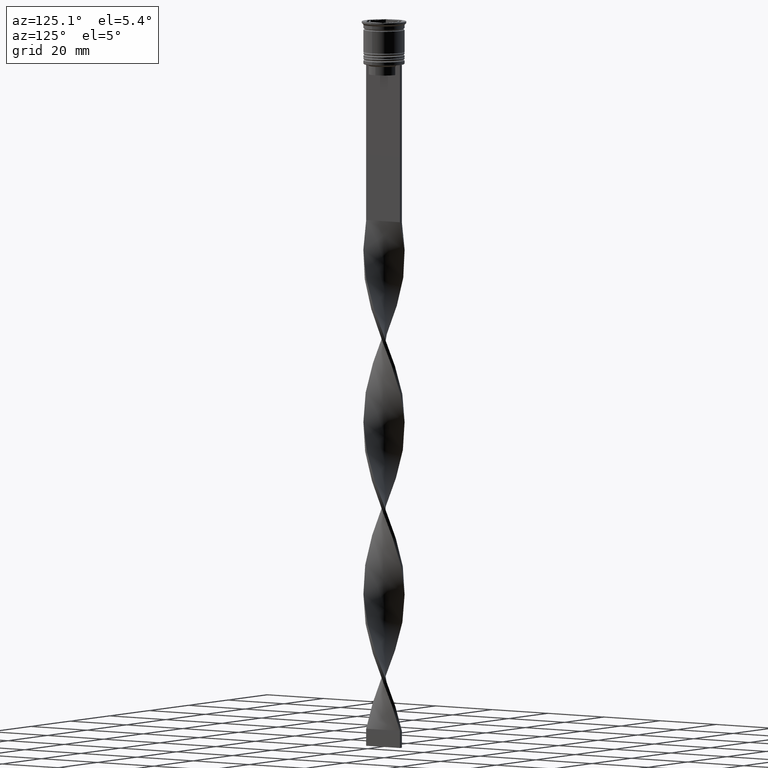
[diagram: clean part render]
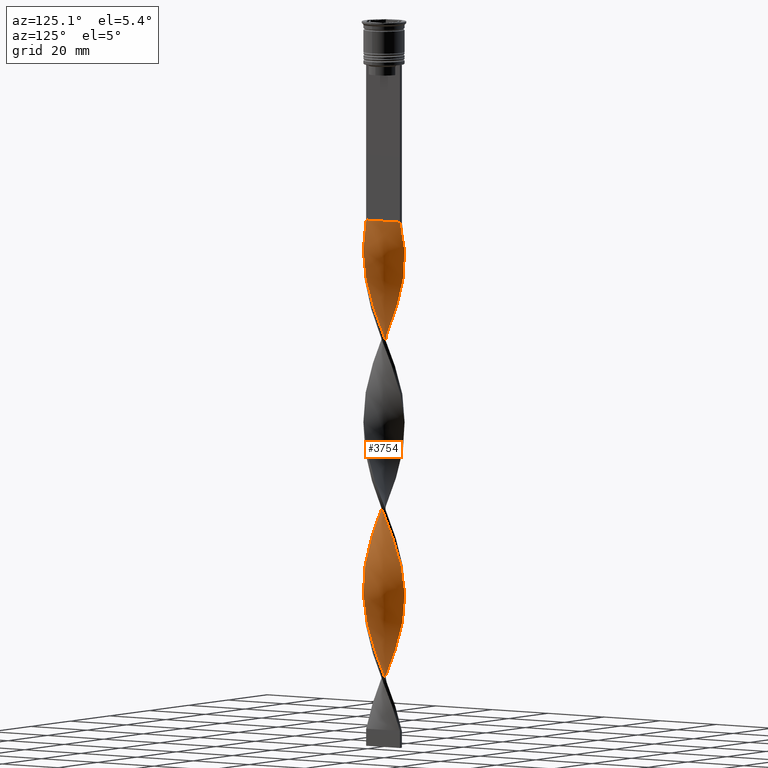
[diagram: same view with one face highlighted and labeled with its STEP entity id]
A machine part, auxiliary view. The second image highlights one B-rep face of the part: STEP entity #3754.
In plain terms, the highlighted face is a freeform B-spline surface patch.
Its self-contained STEP definition (entity closure, byte-faithful):
#20 = CARTESIAN_POINT ( 'NONE',  ( 2.131985436030568781, 5.658259501511265555, -153.4509803921568789 ) ) ;
#21 = CARTESIAN_POINT ( 'NONE',  ( 4.411678320489673233, 4.097205681500676988, -146.1470588235294201 ) ) ;
#37 = CARTESIAN_POINT ( 'NONE',  ( -3.583701545128942456, -4.838086732939007817, -198.7352941176470722 ) ) ;
#39 = CARTESIAN_POINT ( 'NONE',  ( -0.5000000000000009992, -6.000000000000000888, -207.5000000000000000 ) ) ;
#48 = CARTESIAN_POINT ( 'NONE',  ( -0.6110105570574712042, 5.989713357011696715, -61.42156862745097357 ) ) ;
#55 = CARTESIAN_POINT ( 'NONE',  ( -6.020539237501859375, -0.05574306863229388370, -184.1274509803921546 ) ) ;
#56 = CARTESIAN_POINT ( 'NONE',  ( -5.634122364000873517, 2.122890762018907029, -178.2843137254901933 ) ) ;
#59 = CARTESIAN_POINT ( 'NONE',  ( 2.236388528178716140, 5.617813528137045154, -200.1960784313725696 ) ) ;
#81 = CARTESIAN_POINT ( 'NONE',  ( 1.701213882420739232, 5.775454209519709892, -102.3235294117646959 ) ) ;
#97 = CARTESIAN_POINT ( 'NONE',  ( -1.055981877452178308, -5.953668176878988305, -106.7058823529411882 ) ) ;
#103 = CARTESIAN_POINT ( 'NONE',  ( -2.236388528178716584, 5.617813528137047818, -165.1372549019608016 ) ) ;
#115 = CARTESIAN_POINT ( 'NONE',  ( -0.5000000000000009992, -6.000000000000000888, -108.1666666666666572 ) ) ;
#119 = CARTESIAN_POINT ( 'NONE',  ( -3.672669403269011923, -4.770901325147233862, -146.1470588235294201 ) ) ;
#130 = CARTESIAN_POINT ( 'NONE',  ( -0.05598187745217849537, 6.046331823121016136, -59.96078431372549034 ) ) ;
#140 = CARTESIAN_POINT ( 'NONE',  ( -5.800196826636241809, 1.708502050969748165, -127.1568627450980102 ) ) ;
#153 = CARTESIAN_POINT ( 'NONE',  ( 5.928270878038556901, -1.051477244927329080, -131.5392156862745310 ) ) ;
#158 = CARTESIAN_POINT ( 'NONE',  ( 4.791340338341086635, -3.688403482277188949, -170.9803921568627629 ) ) ;
#171 = CARTESIAN_POINT ( 'NONE',  ( -1.593983656741371657, 5.805963839195126042, -111.0882352941176379 ) ) ;
#177 = CARTESIAN_POINT ( 'NONE',  ( 5.089420681871065000, -3.216799204635418352, -172.4411764705882035 ) ) ;
#185 = CARTESIAN_POINT ( 'NONE',  ( -6.020539237501857599, 0.05574306863229388370, -131.5392156862745310 ) ) ;
#196 = CARTESIAN_POINT ( 'NONE',  ( 4.114758515918087056, 4.430578386798786461, -95.01960784313726549 ) ) ;
#212 = CARTESIAN_POINT ( 'NONE',  ( -0.5000000000000009992, -6.000000000000000888, -207.5000000000000000 ) ) ;
#213 = CARTESIAN_POINT ( 'NONE',  ( -4.486786045491809816, -4.014816431915656736, -143.2254901960784537 ) ) ;
#222 = CARTESIAN_POINT ( 'NONE',  ( -0.5000000000000009992, -6.000000000000000888, -207.5000000000000000 ) ) ;
#225 = CARTESIAN_POINT ( 'NONE',  ( 5.593848926018644363, 2.226848488981700402, -140.3039215686274588 ) ) ;
#226 = CARTESIAN_POINT ( 'NONE',  ( -3.230580290619940786, 5.111224263495681264, -68.72549019607842524 ) ) ;
#228 = CARTESIAN_POINT ( 'NONE',  ( 0.5000000000000002220, -5.999999999999999112, -157.8333333333333144 ) ) ;
#241 = CARTESIAN_POINT ( 'NONE',  ( 1.055981877452178752, 5.953668176878989193, -156.3725490196078454 ) ) ;
#245 = CARTESIAN_POINT ( 'NONE',  ( -5.634122364000871741, -2.122890762018906141, -137.3823529411764639 ) ) ;
#267 = CARTESIAN_POINT ( 'NONE',  ( 3.230580290619939010, -5.111224263495682152, -118.3921568627451109 ) ) ;
#285 = CARTESIAN_POINT ( 'NONE',  ( 1.593983656741371657, 5.805963839195126930, -154.9117647058823479 ) ) ;
#286 = CARTESIAN_POINT ( 'NONE',  ( 1.593983656741371657, 5.805963839195126930, -154.9117647058823479 ) ) ;
#300 = CARTESIAN_POINT ( 'NONE',  ( 3.135386787619624638, 5.170165585153852383, -150.5294117647058840 ) ) ;
#301 = CARTESIAN_POINT ( 'NONE',  ( 6.015373881509671783, 0.6136281867224275821, -135.9215686274509665 ) ) ;
#325 = CARTESIAN_POINT ( 'NONE',  ( 4.791340338341086635, -3.688403482277188949, -71.64705882352943433 ) ) ;
#326 = CARTESIAN_POINT ( 'NONE',  ( -5.800196826636243586, -1.708502050969748609, -188.5098039215686185 ) ) ;
#340 = CARTESIAN_POINT ( 'NONE',  ( 5.148110570242104167, 3.122011780336760189, -90.63725490196078738 ) ) ;
#341 = CARTESIAN_POINT ( 'NONE',  ( -4.114758515918087944, 4.430578386798787349, -170.9803921568627629 ) ) ;
#343 = CARTESIAN_POINT ( 'NONE',  ( 5.907785354072954576, -1.161065118846086541, -178.2843137254901933 ) ) ;
#352 = CARTESIAN_POINT ( 'NONE',  ( -1.701213882420739676, 5.775454209519711668, -64.34313725490196134 ) ) ;
#353 = VERTEX_POINT ( 'NONE', #222 ) ;
#360 = CARTESIAN_POINT ( 'NONE',  ( 4.486786045491808927, 4.014816431915656736, -93.55882352941176805 ) ) ;
#361 = CARTESIAN_POINT ( 'NONE',  ( 2.131985436030569225, 5.658259501511266443, -153.4509803921568789 ) ) ;
#372 = CARTESIAN_POINT ( 'NONE',  ( -2.131985436030568781, -5.658259501511267331, -103.7843137254901791 ) ) ;
#382 = CARTESIAN_POINT ( 'NONE',  ( 5.830837162583066835, 1.600812440396822023, -86.25490196078432348 ) ) ;
#398 = CARTESIAN_POINT ( 'NONE',  ( -1.166039236662763434, 5.933094890902378182, -62.88235294117647101 ) ) ;
#403 = CARTESIAN_POINT ( 'NONE',  ( 3.230580290619939454, 5.111224263495680376, -97.94117647058824616 ) ) ;
#422 = CARTESIAN_POINT ( 'NONE',  ( -4.032016302638259830, 4.506007880724164139, -118.3921568627451109 ) ) ;
#433 = CARTESIAN_POINT ( 'NONE',  ( 5.148110570242106832, -3.122011780336759745, -125.6960784313725412 ) ) ;
#442 = CARTESIAN_POINT ( 'NONE',  ( -4.411678320489672345, 4.097205681500675212, -119.8529411764705799 ) ) ;
#461 = CARTESIAN_POINT ( 'NONE',  ( -1.701213882420739676, -5.775454209519709892, -151.9901960784313530 ) ) ;
#466 = CARTESIAN_POINT ( 'NONE',  ( -5.907785354072954576, 1.161065118846088762, -128.6176470588235361 ) ) ;
#475 = CARTESIAN_POINT ( 'NONE',  ( 2.733484409399326687, 5.364518895816362765, -198.7352941176470722 ) ) ;
#480 = CARTESIAN_POINT ( 'NONE',  ( -0.5000000000000000000, 1.999999999999999112, -207.5000000000000000 ) ) ;
#481 = CARTESIAN_POINT ( 'NONE',  ( -0.05598187745217816924, -6.046331823121016136, -156.3725490196078454 ) ) ;
#489 = CARTESIAN_POINT ( 'NONE',  ( -3.135386787619624194, 5.170165585153850607, -115.4705882352940876 ) ) ;
#501 = CARTESIAN_POINT ( 'NONE',  ( 5.928270878038555125, 1.051477244927328636, -84.79411764705882604 ) ) ;
#519 = CARTESIAN_POINT ( 'NONE',  ( -3.135386787619626414, -5.170165585153851495, -100.8627450980392126 ) ) ;
#520 = CARTESIAN_POINT ( 'NONE',  ( -2.733484409399328019, 5.364518895816364541, -67.26470588235292780 ) ) ;
#521 = CARTESIAN_POINT ( 'NONE',  ( -3.230580290619940342, -5.111224263495679487, -147.6078431372548891 ) ) ;
#534 = CARTESIAN_POINT ( 'NONE',  ( -3.583701545128942456, -4.838086732939007817, -99.40196078431372939 ) ) ;
#537 = CARTESIAN_POINT ( 'NONE',  ( -6.015373881509670007, 0.6136281867224241404, -130.0784313725490335 ) ) ;
#553 = CARTESIAN_POINT ( 'NONE',  ( -6.015373881509670895, -0.6136281867224269160, -86.25490196078432348 ) ) ;
#574 = CARTESIAN_POINT ( 'NONE',  ( 1.701213882420741008, -5.775454209519712556, -114.0098039215686185 ) ) ;
#575 = CARTESIAN_POINT ( 'NONE',  ( -0.05598187745217849537, 6.046331823121016136, -159.2941176470588118 ) ) ;
#577 = CARTESIAN_POINT ( 'NONE',  ( 0.05598187745217741290, 6.046331823121016136, -206.0392156862745026 ) ) ;
#593 = CARTESIAN_POINT ( 'NONE',  ( 3.672669403269013699, -4.770901325147233862, -119.8529411764705799 ) ) ;
#596 = CARTESIAN_POINT ( 'NONE',  ( 5.437407565418680200, 2.644969083640992036, -188.5098039215686185 ) ) ;
#610 = CARTESIAN_POINT ( 'NONE',  ( -5.089420681871066776, -3.216799204635418796, -192.8921568627450824 ) ) ;
#612 = CARTESIAN_POINT ( 'NONE',  ( 1.055981877452178974, 5.953668176878988305, -156.3725490196078454 ) ) ;
#627 = CARTESIAN_POINT ( 'NONE',  ( -2.236388528178716140, 5.617813528137047818, -65.80392156862745878 ) ) ;
#635 = CARTESIAN_POINT ( 'NONE',  ( 3.135386787619625082, -5.170165585153850607, -65.80392156862747299 ) ) ;
#636 = CARTESIAN_POINT ( 'NONE',  ( -5.593848926018644363, -2.226848488981698626, -189.9705882352941160 ) ) ;
#651 = CARTESIAN_POINT ( 'NONE',  ( -3.135386787619626414, -5.170165585153851495, -200.1960784313725981 ) ) ;
#652 = CARTESIAN_POINT ( 'NONE',  ( -6.025704593494047856, 0.5021420494578378024, -182.6666666666666856 ) ) ;
#663 = CARTESIAN_POINT ( 'NONE',  ( -4.032016302638261607, -4.506007880724165027, -97.94117647058824616 ) ) ;
#667 = LINE ( 'NONE', #975, #881 ) ;
#670 = CARTESIAN_POINT ( 'NONE',  ( -3.230580290619940786, 5.111224263495681264, -168.0588235294117680 ) ) ;
#680 = CARTESIAN_POINT ( 'NONE',  ( -6.025704593494047856, 0.5021420494578378024, -83.33333333333332860 ) ) ;
#689 = CARTESIAN_POINT ( 'NONE',  ( 5.593848926018642587, -2.226848488981698626, -76.02941176470586981 ) ) ;
#697 = CARTESIAN_POINT ( 'NONE',  ( 5.800196826636241809, -1.708502050969748609, -77.49019607843136725 ) ) ;
#704 = CARTESIAN_POINT ( 'NONE',  ( -3.230580290619940786, 5.111224263495681264, -68.72549019607842524 ) ) ;
#709 = CARTESIAN_POINT ( 'NONE',  ( -3.230580290619940342, -5.111224263495679487, -147.6078431372548891 ) ) ;
#724 = CARTESIAN_POINT ( 'NONE',  ( 3.230580290619939010, -5.111224263495682152, -118.3921568627451109 ) ) ;
#730 = CARTESIAN_POINT ( 'NONE',  ( 2.633686111825095377, -5.414212543332557637, -163.6764705882352757 ) ) ;
#748 = CARTESIAN_POINT ( 'NONE',  ( 1.593983656741372767, -5.805963839195126042, -160.7549019607842808 ) ) ;
#756 = CARTESIAN_POINT ( 'NONE',  ( 5.089420681871065000, -3.216799204635418352, -73.10784313725488914 ) ) ;
#770 = CARTESIAN_POINT ( 'NONE',  ( 5.437407565418679312, 2.644969083640992036, -188.5098039215686185 ) ) ;
#778 = CARTESIAN_POINT ( 'NONE',  ( -5.593848926018643475, 2.226848488981696850, -125.6960784313725412 ) ) ;
#785 = CARTESIAN_POINT ( 'NONE',  ( -4.791340338341087524, 3.688403482277188061, -121.3137254901960631 ) ) ;
#791 = CARTESIAN_POINT ( 'NONE',  ( -1.166039236662763434, 5.933094890902377294, -62.88235294117647811 ) ) ;
#793 = CARTESIAN_POINT ( 'NONE',  ( 1.166039236662764322, 5.933094890902376406, -103.7843137254901791 ) ) ;
#811 = CARTESIAN_POINT ( 'NONE',  ( 6.015373881509670895, 0.6136281867224275821, -135.9215686274509665 ) ) ;
#815 = CARTESIAN_POINT ( 'NONE',  ( 4.486786045491808927, 4.014816431915656736, -93.55882352941176805 ) ) ;
#828 = CARTESIAN_POINT ( 'NONE',  ( -5.830837162583068611, 1.600812440396822023, -80.41176470588234793 ) ) ;
#831 = CARTESIAN_POINT ( 'NONE',  ( 2.633686111825095377, -5.414212543332557637, -163.6764705882352757 ) ) ;
#842 = CARTESIAN_POINT ( 'NONE',  ( 1.166039236662764322, 5.933094890902375518, -203.1176470588235361 ) ) ;
#848 = CARTESIAN_POINT ( 'NONE',  ( 4.411678320489673233, 4.097205681500676988, -146.1470588235294201 ) ) ;
#851 = CARTESIAN_POINT ( 'NONE',  ( 2.236388528178716140, 5.617813528137045154, -100.8627450980392126 ) ) ;
#869 = CARTESIAN_POINT ( 'NONE',  ( 5.830837162583069500, -1.600812440396820246, -130.0784313725490335 ) ) ;
#870 = CARTESIAN_POINT ( 'NONE',  ( -3.135386787619625970, -5.170165585153851495, -200.1960784313725696 ) ) ;
#872 = CARTESIAN_POINT ( 'NONE',  ( 5.593848926018642587, -2.226848488981698626, -175.3627450980391984 ) ) ;
#881 = VECTOR ( 'NONE', #3380, 1000.000000000000000 ) ;
#891 = CARTESIAN_POINT ( 'NONE',  ( 4.486786045491808927, -4.014816431915659400, -122.7745098039215605 ) ) ;
#893 = CARTESIAN_POINT ( 'NONE',  ( -4.486786045491809816, 4.014816431915658512, -172.4411764705882035 ) ) ;
#895 = CARTESIAN_POINT ( 'NONE',  ( 2.733484409399326687, 5.364518895816362765, -198.7352941176470722 ) ) ;
#912 = CARTESIAN_POINT ( 'NONE',  ( -5.437407565418681088, 2.644969083640993368, -176.8235294117647243 ) ) ;
#913 = CARTESIAN_POINT ( 'NONE',  ( 0.5000000000000002220, 6.000000000000000888, -157.8333333333333144 ) ) ;
#932 = CARTESIAN_POINT ( 'NONE',  ( 5.437407565418679312, 2.644969083640992036, -89.17647058823527573 ) ) ;
#933 = CARTESIAN_POINT ( 'NONE',  ( -4.791340338341087524, -3.688403482277189838, -194.3529411764705799 ) ) ;
#958 = CARTESIAN_POINT ( 'NONE',  ( 2.733484409399326687, 5.364518895816362765, -99.40196078431372939 ) ) ;
#961 = CARTESIAN_POINT ( 'NONE',  ( 5.830837162583065947, 1.600812440396822023, -185.5882352941176237 ) ) ;
#970 = CARTESIAN_POINT ( 'NONE',  ( 0.5000000000000002220, 6.000000000000000888, -58.50000000000000000 ) ) ;
#975 = CARTESIAN_POINT ( 'NONE',  ( 0.5000000000000002220, -6.000000000000000000, -58.50000000000000000 ) ) ;
#977 = CARTESIAN_POINT ( 'NONE',  ( 0.6110105570574709821, 5.989713357011695827, -105.2450980392156765 ) ) ;
#992 = CARTESIAN_POINT ( 'NONE',  ( -4.486786045491809816, 4.014816431915658512, -172.4411764705882035 ) ) ;
#998 = CARTESIAN_POINT ( 'NONE',  ( 5.387501025401043364, -2.745194926993648199, -74.56862745098038658 ) ) ;
#1018 = CARTESIAN_POINT ( 'NONE',  ( -4.858813575065529022, -3.599054477032529675, -141.7647058823529562 ) ) ;
#1041 = CARTESIAN_POINT ( 'NONE',  ( -5.634122364000871741, -2.122890762018906141, -137.3823529411764639 ) ) ;
#1055 = CARTESIAN_POINT ( 'NONE',  ( -4.114758515918085280, -4.430578386798788237, -144.6862745098039227 ) ) ;
#1062 = CARTESIAN_POINT ( 'NONE',  ( 4.411678320489672345, -4.097205681500675212, -70.18627450980390847 ) ) ;
#1071 = CARTESIAN_POINT ( 'NONE',  ( 4.486786045491808927, 4.014816431915656736, -192.8921568627450824 ) ) ;
#1081 =( BOUNDED_CURVE ( )  B_SPLINE_CURVE ( 2, ( #970, #130, #48, #398, #352, #627, #2475, #704, #3108, #1543, #2177, #1239, #2451, #3648, #3712, #1587, #3126, #680, #2768, #1567, #1607, #3693, #1917, #3675, #2814, #1324, #3376, #663, #2536, #3735, #1874, #372, #2796, #97, #115, #1286, #2495, #2197, #3394, #1304, #2512, #724, #3751, #2240, #1936, #3142, #433, #2556, #1626, #2857, #153, #1343, #3439, #301, #1818, #3058, #3663, #3615, #1189, #1846, #21, #2402, #2421, #2441, #2756, #361, #286, #612, #913, #575, #3366, #1495, #2998, #1171, #3346, #2720, #1531, #341, #893, #3038, #1213, #1230, #56, #3876, #1248, #652, #2459, #3636, #2120, #326, #636, #2377, #3895, #933, #1778, #1476, #3577, #870, #3320, #2164, #1515, #2738, #39 ),
 .UNSPECIFIED., .F., .T. ) 
 B_SPLINE_CURVE_WITH_KNOTS ( ( 3, 2, 2, 2, 2, 2, 2, 2, 2, 2, 2, 2, 2, 2, 2, 2, 2, 2, 2, 2, 2, 2, 2, 2, 2, 2, 2, 2, 2, 2, 2, 2, 2, 2, 2, 2, 2, 2, 2, 2, 2, 2, 2, 2, 2, 2, 2, 2, 2, 2, 2, 3 ),
 ( 0.000000000000000000, 0.01470588235294117453, 0.02941176470588234906, 0.04411764705882353227, 0.05882352941176469813, 0.07352941176470588480, 0.08823529411764706454, 0.1029411764705882443, 0.1176470588235293963, 0.1323529411764705899, 0.1470588235294117696, 0.1617647058823529493, 0.1764705882352941291, 0.1911764705882352811, 0.2058823529411764885, 0.2205882352941176405, 0.2352941176470587925, 0.2500000000000000000, 0.2647058823529411797, 0.2794117647058823595, 0.2941176470588235392, 0.3088235294117647189, 0.3235294117647058987, 0.3382352941176470229, 0.3529411764705882582, 0.3676470588235294379, 0.3823529411764705621, 0.3970588235294117418, 0.4117647058823529771, 0.4264705882352941013, 0.4411764705882352811, 0.4558823529411764608, 0.4705882352941175850, 0.4852941176470588203, 0.5000000000000000000, 0.5147058823529411242, 0.5294117647058823595, 0.5441176470588234837, 0.5588235294117647189, 0.5735294117647058432, 0.5882352941176470784, 0.6029411764705882026, 0.6176470588235294379, 0.6323529411764705621, 0.6470588235294117974, 0.6617647058823529216, 0.6764705882352940458, 0.6911764705882351700, 0.7058823529411765163, 0.7205882352941176405, 0.7352941176470588758, 0.7500000000000000000 ),
 .UNSPECIFIED. ) 
 CURVE ( )  GEOMETRIC_REPRESENTATION_ITEM ( )  RATIONAL_B_SPLINE_CURVE ( ( 1.000000000000000000, 0.9957341762950344677, 1.000000000000000000, 0.9957341762950344677, 1.000000000000000000, 0.9957341762950344677, 1.000000000000000000, 0.9957341762950344677, 1.000000000000000000, 0.9957341762950344677, 1.000000000000000000, 0.9957341762950344677, 1.000000000000000000, 0.9957341762950344677, 1.000000000000000000, 0.9957341762950344677, 1.000000000000000000, 0.9957341762950344677, 1.000000000000000000, 0.9957341762950344677, 1.000000000000000000, 0.9957341762950344677, 1.000000000000000000, 0.9957341762950344677, 1.000000000000000000, 0.9957341762950344677, 1.000000000000000000, 0.9957341762950344677, 1.000000000000000000, 0.9957341762950344677, 1.000000000000000000, 0.9957341762950344677, 1.000000000000000000, 0.9957341762950344677, 1.000000000000000000, 0.9957341762950344677, 1.000000000000000000, 0.9957341762950344677, 1.000000000000000000, 0.9957341762950344677, 1.000000000000000000, 0.9957341762950344677, 1.000000000000000000, 0.9957341762950344677, 1.000000000000000000, 0.9957341762950344677, 1.000000000000000000, 0.9957341762950344677, 1.000000000000000000, 0.9957341762950344677, 1.000000000000000000, 0.9957341762950344677, 1.000000000000000000, 0.9957341762950344677, 1.000000000000000000, 0.9957341762950344677, 1.000000000000000000, 0.9957341762950344677, 1.000000000000000000, 0.9957341762950344677, 1.000000000000000000, 0.9957341762950344677, 1.000000000000000000, 0.9957341762950344677, 1.000000000000000000, 0.9957341762950344677, 1.000000000000000000, 0.9957341762950344677, 1.000000000000000000, 0.9957341762950344677, 1.000000000000000000, 0.9957341762950344677, 1.000000000000000000, 0.9957341762950344677, 1.000000000000000000, 0.9957341762950344677, 1.000000000000000000, 0.9957341762950344677, 1.000000000000000000, 0.9957341762950344677, 1.000000000000000000, 0.9957341762950344677, 1.000000000000000000, 0.9957341762950344677, 1.000000000000000000, 0.9957341762950344677, 1.000000000000000000, 0.9957341762950344677, 1.000000000000000000, 0.9957341762950344677, 1.000000000000000000, 0.9957341762950344677, 1.000000000000000000, 0.9957341762950344677, 1.000000000000000000, 0.9957341762950344677, 1.000000000000000000, 0.9957341762950344677, 1.000000000000000000, 0.9957341762950344677, 1.000000000000000000, 0.9957341762950344677, 1.000000000000000000 ) ) 
 REPRESENTATION_ITEM ( '' )  );
#1082 = CARTESIAN_POINT ( 'NONE',  ( 5.437407565418680200, 2.644969083640992036, -89.17647058823528994 ) ) ;
#1090 = CARTESIAN_POINT ( 'NONE',  ( 6.025704593494046080, 0.5021420494578371363, -182.6666666666666572 ) ) ;
#1097 = CARTESIAN_POINT ( 'NONE',  ( -5.800196826636241809, 1.708502050969748165, -127.1568627450980244 ) ) ;
#1114 = CARTESIAN_POINT ( 'NONE',  ( -4.114758515918085280, -4.430578386798788237, -144.6862745098039227 ) ) ;
#1116 = ORIENTED_EDGE ( 'NONE', *, *, #1951, .T. ) ;
#1131 = CARTESIAN_POINT ( 'NONE',  ( 5.387501025401045140, 2.745194926993649087, -141.7647058823529562 ) ) ;
#1136 = CARTESIAN_POINT ( 'NONE',  ( -5.928270878038555125, -1.051477244927326860, -134.4607843137254974 ) ) ;
#1147 = CARTESIAN_POINT ( 'NONE',  ( 0.5000000000000002220, -5.999999999999999112, -58.50000000000000000 ) ) ;
#1154 = CARTESIAN_POINT ( 'NONE',  ( 0.6110105570574698719, -5.989713357011695827, -111.0882352941176379 ) ) ;
#1157 = CARTESIAN_POINT ( 'NONE',  ( 4.032016302638260719, -4.506007880724164139, -168.0588235294117680 ) ) ;
#1170 = CARTESIAN_POINT ( 'NONE',  ( 5.928270878038556901, -1.051477244927329080, -131.5392156862745310 ) ) ;
#1171 = CARTESIAN_POINT ( 'NONE',  ( -2.236388528178716140, 5.617813528137047818, -165.1372549019608016 ) ) ;
#1173 = CARTESIAN_POINT ( 'NONE',  ( 4.486786045491808927, 4.014816431915656736, -192.8921568627450824 ) ) ;
#1188 = CARTESIAN_POINT ( 'NONE',  ( -5.437407565418681088, 2.644969083640993368, -77.49019607843138147 ) ) ;
#1189 = CARTESIAN_POINT ( 'NONE',  ( 5.089420681871067664, 3.216799204635417464, -143.2254901960784537 ) ) ;
#1193 = CARTESIAN_POINT ( 'NONE',  ( -0.4999999999999994449, 5.999999999999999112, -207.5000000000000000 ) ) ;
#1212 = CARTESIAN_POINT ( 'NONE',  ( 1.055981877452178530, -5.953668176878985641, -59.96078431372549744 ) ) ;
#1213 = CARTESIAN_POINT ( 'NONE',  ( -5.148110570242105943, 3.122011780336761522, -175.3627450980391984 ) ) ;
#1215 = CARTESIAN_POINT ( 'NONE',  ( 5.148110570242104167, 3.122011780336760189, -189.9705882352941160 ) ) ;
#1229 = CARTESIAN_POINT ( 'NONE',  ( 0.5000000000000002220, -5.999999999999999112, -58.50000000000000000 ) ) ;
#1230 = CARTESIAN_POINT ( 'NONE',  ( -5.437407565418681088, 2.644969083640993368, -176.8235294117647243 ) ) ;
#1237 = CARTESIAN_POINT ( 'NONE',  ( 1.701213882420739232, 5.775454209519709892, -201.6568627450980387 ) ) ;
#1239 = CARTESIAN_POINT ( 'NONE',  ( -4.858813575065530799, 3.599054477032530563, -74.56862745098038658 ) ) ;
#1240 = ORIENTED_EDGE ( 'NONE', *, *, #3570, .F. ) ;
#1247 = CARTESIAN_POINT ( 'NONE',  ( 3.583701545128941124, -4.838086732939006041, -67.26470588235292780 ) ) ;
#1248 = CARTESIAN_POINT ( 'NONE',  ( -5.928270878038556013, 1.051477244927329524, -181.2058823529411598 ) ) ;
#1250 = CARTESIAN_POINT ( 'NONE',  ( 1.701213882420739232, 5.775454209519709892, -201.6568627450980387 ) ) ;
#1270 = ORIENTED_EDGE ( 'NONE', *, *, #2464, .F. ) ;
#1271 = CARTESIAN_POINT ( 'NONE',  ( 1.166039236662764322, 5.933094890902375518, -103.7843137254901933 ) ) ;
#1286 = CARTESIAN_POINT ( 'NONE',  ( 0.05598187745217893252, -6.046331823121016136, -109.6274509803921404 ) ) ;
#1293 = CARTESIAN_POINT ( 'NONE',  ( -5.907785354072956352, -1.161065118846087874, -187.0490196078431211 ) ) ;
#1304 = CARTESIAN_POINT ( 'NONE',  ( 2.236388528178715696, -5.617813528137047818, -115.4705882352941018 ) ) ;
#1310 = CARTESIAN_POINT ( 'NONE',  ( 5.907785354072954576, -1.161065118846086541, -178.2843137254901933 ) ) ;
#1324 = CARTESIAN_POINT ( 'NONE',  ( -4.791340338341087524, -3.688403482277189838, -95.01960784313726549 ) ) ;
#1334 = CARTESIAN_POINT ( 'NONE',  ( -6.015373881509669118, 0.6136281867224241404, -130.0784313725490335 ) ) ;
#1343 = CARTESIAN_POINT ( 'NONE',  ( 6.025704593494047856, -0.5021420494578385796, -133.0000000000000000 ) ) ;
#1351 = CARTESIAN_POINT ( 'NONE',  ( -5.089420681871064112, 3.216799204635418796, -122.7745098039215605 ) ) ;
#1356 = CARTESIAN_POINT ( 'NONE',  ( 2.131985436030567005, -5.658259501511265555, -62.88235294117647101 ) ) ;
#1364 = CARTESIAN_POINT ( 'NONE',  ( 5.593848926018642587, -2.226848488981698626, -175.3627450980391984 ) ) ;
#1370 = CARTESIAN_POINT ( 'NONE',  ( 5.387501025401043364, -2.745194926993648199, -173.9019607843137294 ) ) ;
#1380 = CARTESIAN_POINT ( 'NONE',  ( -2.733484409399329351, -5.364518895816360988, -149.0686274509803866 ) ) ;
#1387 = CARTESIAN_POINT ( 'NONE',  ( 5.830837162583065947, 1.600812440396822023, -86.25490196078432348 ) ) ;
#1402 = CARTESIAN_POINT ( 'NONE',  ( 1.701213882420739232, 5.775454209519709892, -102.3235294117646959 ) ) ;
#1409 = CARTESIAN_POINT ( 'NONE',  ( -0.4999999999999994449, 5.999999999999999112, -207.5000000000000000 ) ) ;
#1416 = CARTESIAN_POINT ( 'NONE',  ( -6.020539237501859375, -0.05574306863229388370, -84.79411764705882604 ) ) ;
#1417 = CARTESIAN_POINT ( 'NONE',  ( -0.5000000000000004441, -2.000000000000000888, -207.5000000000000000 ) ) ;
#1419 = CARTESIAN_POINT ( 'NONE',  ( 1.593983656741372767, -5.805963839195126042, -160.7549019607842808 ) ) ;
#1428 = CARTESIAN_POINT ( 'NONE',  ( 2.236388528178716584, 5.617813528137046042, -200.1960784313725981 ) ) ;
#1436 = CARTESIAN_POINT ( 'NONE',  ( -5.634122364000873517, 2.122890762018907029, -78.95098039215686470 ) ) ;
#1441 = CARTESIAN_POINT ( 'NONE',  ( 1.055981877452178752, -5.953668176878984752, -159.2941176470588118 ) ) ;
#1458 = CARTESIAN_POINT ( 'NONE',  ( -4.858813575065530799, 3.599054477032530563, -74.56862745098038658 ) ) ;
#1475 = CARTESIAN_POINT ( 'NONE',  ( 5.148110570242106832, -3.122011780336759745, -125.6960784313725412 ) ) ;
#1476 = CARTESIAN_POINT ( 'NONE',  ( -4.032016302638261607, -4.506007880724165027, -197.2745098039215463 ) ) ;
#1494 = CARTESIAN_POINT ( 'NONE',  ( -4.411678320489674121, -4.097205681500676100, -96.48039215686274872 ) ) ;
#1495 = CARTESIAN_POINT ( 'NONE',  ( -1.166039236662763434, 5.933094890902378182, -162.2156862745098351 ) ) ;
#1498 = CARTESIAN_POINT ( 'NONE',  ( 5.800196826636241809, -1.708502050969748609, -176.8235294117647243 ) ) ;
#1514 = CARTESIAN_POINT ( 'NONE',  ( -6.025704593494047856, 0.5021420494578378024, -182.6666666666666572 ) ) ;
#1515 = CARTESIAN_POINT ( 'NONE',  ( -1.593983656741373212, -5.805963839195126042, -204.5784313725490335 ) ) ;
#1517 = CARTESIAN_POINT ( 'NONE',  ( 4.114758515918087056, 4.430578386798786461, -194.3529411764705799 ) ) ;
#1529 = CARTESIAN_POINT ( 'NONE',  ( -5.148110570242105943, 3.122011780336761522, -175.3627450980391984 ) ) ;
#1531 = CARTESIAN_POINT ( 'NONE',  ( -3.672669403269013699, 4.770901325147233862, -169.5196078431372371 ) ) ;
#1533 = CARTESIAN_POINT ( 'NONE',  ( 3.672669403269014143, 4.770901325147232086, -195.8137254901960773 ) ) ;
#1543 = CARTESIAN_POINT ( 'NONE',  ( -4.114758515918087944, 4.430578386798787349, -71.64705882352942012 ) ) ;
#1550 = CARTESIAN_POINT ( 'NONE',  ( 2.236388528178716584, 5.617813528137046042, -100.8627450980392126 ) ) ;
#1567 = CARTESIAN_POINT ( 'NONE',  ( -6.015373881509671783, -0.6136281867224271380, -86.25490196078432348 ) ) ;
#1576 = CARTESIAN_POINT ( 'NONE',  ( 5.089420681871065000, -3.216799204635418352, -73.10784313725488914 ) ) ;
#1587 = CARTESIAN_POINT ( 'NONE',  ( -5.830837162583067723, 1.600812440396822023, -80.41176470588234793 ) ) ;
#1589 = B_SPLINE_CURVE_WITH_KNOTS ( 'NONE', 3,
 ( #212, #1417, #480, #2039 ),
 .UNSPECIFIED., .F., .F.,
 ( 4, 4 ),
 ( 0.000000000000000000, 1.000000000000000000 ),
 .UNSPECIFIED. ) ;
#1594 = CARTESIAN_POINT ( 'NONE',  ( -4.114758515918087944, 4.430578386798787349, -170.9803921568627629 ) ) ;
#1607 = CARTESIAN_POINT ( 'NONE',  ( -5.907785354072956352, -1.161065118846087874, -87.71568627450979250 ) ) ;
#1613 = CARTESIAN_POINT ( 'NONE',  ( -2.633686111825096265, 5.414212543332556749, -114.0098039215686185 ) ) ;
#1626 = CARTESIAN_POINT ( 'NONE',  ( 5.634122364000873517, -2.122890762018908362, -128.6176470588235361 ) ) ;
#1635 = CARTESIAN_POINT ( 'NONE',  ( 2.131985436030567005, -5.658259501511264666, -162.2156862745098351 ) ) ;
#1642 = CARTESIAN_POINT ( 'NONE',  ( 1.593983656741372767, -5.805963839195126042, -61.42156862745097357 ) ) ;
#1643 =( BOUNDED_CURVE ( )  B_SPLINE_CURVE ( 2, ( #3388, #1949, #1642, #1356, #2809, #2870, #2568, #3765, #1062, #3471, #756, #998, #3414, #697, #1912, #3119, #1672, #2345, #501, #1387, #2900, #1082, #3244, #3562, #815, #196, #2582, #2619, #1730, #851, #1402, #793, #3489, #3211, #2602, #2638, #2026, #1696, #3818, #2665, #1713, #2283, #3781, #2957, #2001, #3798, #778, #1097, #466, #537, #2300, #3835, #1136, #2060, #245, #3545, #2922, #3231, #213, #1114, #1984, #521, #2317, #3195, #3502, #3520, #2936, #481, #228, #1441, #1419, #3862, #831, #2041, #2364, #1157, #1657, #2885, #177, #1370, #872, #1498, #343, #3897, #3879, #2443, #3261, #961, #2699, #596, #1215, #3285, #1173, #1517, #1533, #2722, #895, #59, #1250, #2758, #2379, #577, #1193 ),
 .UNSPECIFIED., .F., .T. ) 
 B_SPLINE_CURVE_WITH_KNOTS ( ( 3, 2, 2, 2, 2, 2, 2, 2, 2, 2, 2, 2, 2, 2, 2, 2, 2, 2, 2, 2, 2, 2, 2, 2, 2, 2, 2, 2, 2, 2, 2, 2, 2, 2, 2, 2, 2, 2, 2, 2, 2, 2, 2, 2, 2, 2, 2, 2, 2, 2, 2, 3 ),
 ( 0.000000000000000000, 0.01470588235294117453, 0.02941176470588234906, 0.04411764705882353227, 0.05882352941176469813, 0.07352941176470588480, 0.08823529411764706454, 0.1029411764705882443, 0.1176470588235293963, 0.1323529411764705899, 0.1470588235294117696, 0.1617647058823529493, 0.1764705882352941291, 0.1911764705882352811, 0.2058823529411764885, 0.2205882352941176405, 0.2352941176470587925, 0.2500000000000000000, 0.2647058823529411797, 0.2794117647058823595, 0.2941176470588235392, 0.3088235294117647189, 0.3235294117647058987, 0.3382352941176470229, 0.3529411764705882582, 0.3676470588235294379, 0.3823529411764705621, 0.3970588235294117418, 0.4117647058823529771, 0.4264705882352941013, 0.4411764705882352811, 0.4558823529411764608, 0.4705882352941175850, 0.4852941176470588203, 0.5000000000000000000, 0.5147058823529411242, 0.5294117647058823595, 0.5441176470588234837, 0.5588235294117647189, 0.5735294117647058432, 0.5882352941176470784, 0.6029411764705882026, 0.6176470588235294379, 0.6323529411764705621, 0.6470588235294117974, 0.6617647058823529216, 0.6764705882352940458, 0.6911764705882351700, 0.7058823529411765163, 0.7205882352941176405, 0.7352941176470588758, 0.7500000000000000000 ),
 .UNSPECIFIED. ) 
 CURVE ( )  GEOMETRIC_REPRESENTATION_ITEM ( )  RATIONAL_B_SPLINE_CURVE ( ( 1.000000000000000000, 0.9957341762950344677, 1.000000000000000000, 0.9957341762950344677, 1.000000000000000000, 0.9957341762950344677, 1.000000000000000000, 0.9957341762950344677, 1.000000000000000000, 0.9957341762950344677, 1.000000000000000000, 0.9957341762950344677, 1.000000000000000000, 0.9957341762950344677, 1.000000000000000000, 0.9957341762950344677, 1.000000000000000000, 0.9957341762950344677, 1.000000000000000000, 0.9957341762950344677, 1.000000000000000000, 0.9957341762950344677, 1.000000000000000000, 0.9957341762950344677, 1.000000000000000000, 0.9957341762950344677, 1.000000000000000000, 0.9957341762950344677, 1.000000000000000000, 0.9957341762950344677, 1.000000000000000000, 0.9957341762950344677, 1.000000000000000000, 0.9957341762950344677, 1.000000000000000000, 0.9957341762950344677, 1.000000000000000000, 0.9957341762950344677, 1.000000000000000000, 0.9957341762950344677, 1.000000000000000000, 0.9957341762950344677, 1.000000000000000000, 0.9957341762950344677, 1.000000000000000000, 0.9957341762950344677, 1.000000000000000000, 0.9957341762950344677, 1.000000000000000000, 0.9957341762950344677, 1.000000000000000000, 0.9957341762950344677, 1.000000000000000000, 0.9957341762950344677, 1.000000000000000000, 0.9957341762950344677, 1.000000000000000000, 0.9957341762950344677, 1.000000000000000000, 0.9957341762950344677, 1.000000000000000000, 0.9957341762950344677, 1.000000000000000000, 0.9957341762950344677, 1.000000000000000000, 0.9957341762950344677, 1.000000000000000000, 0.9957341762950344677, 1.000000000000000000, 0.9957341762950344677, 1.000000000000000000, 0.9957341762950344677, 1.000000000000000000, 0.9957341762950344677, 1.000000000000000000, 0.9957341762950344677, 1.000000000000000000, 0.9957341762950344677, 1.000000000000000000, 0.9957341762950344677, 1.000000000000000000, 0.9957341762950344677, 1.000000000000000000, 0.9957341762950344677, 1.000000000000000000, 0.9957341762950344677, 1.000000000000000000, 0.9957341762950344677, 1.000000000000000000, 0.9957341762950344677, 1.000000000000000000, 0.9957341762950344677, 1.000000000000000000, 0.9957341762950344677, 1.000000000000000000, 0.9957341762950344677, 1.000000000000000000, 0.9957341762950344677, 1.000000000000000000, 0.9957341762950344677, 1.000000000000000000, 0.9957341762950344677, 1.000000000000000000 ) ) 
 REPRESENTATION_ITEM ( '' )  );
#1650 = CARTESIAN_POINT ( 'NONE',  ( 4.411678320489672345, -4.097205681500675212, -169.5196078431372371 ) ) ;
#1657 = CARTESIAN_POINT ( 'NONE',  ( 4.411678320489672345, -4.097205681500675212, -169.5196078431372371 ) ) ;
#1665 = CARTESIAN_POINT ( 'NONE',  ( -1.055981877452178974, 5.953668176878985641, -109.6274509803921546 ) ) ;
#1672 = CARTESIAN_POINT ( 'NONE',  ( 6.020539237501857599, -0.05574306863229464004, -81.87254901960783116 ) ) ;
#1686 = CARTESIAN_POINT ( 'NONE',  ( 1.055981877452178530, -5.953668176878985641, -159.2941176470588118 ) ) ;
#1694 = CARTESIAN_POINT ( 'NONE',  ( 0.5000000000000002220, 6.000000000000000888, -58.50000000000000000 ) ) ;
#1696 = CARTESIAN_POINT ( 'NONE',  ( -2.131985436030567005, 5.658259501511265555, -112.5490196078431495 ) ) ;
#1707 = CARTESIAN_POINT ( 'NONE',  ( -0.4999999999999994449, 5.999999999999999112, -207.5000000000000000 ) ) ;
#1711 = CARTESIAN_POINT ( 'NONE',  ( 4.791340338341086635, 3.688403482277191614, -144.6862745098039227 ) ) ;
#1713 = CARTESIAN_POINT ( 'NONE',  ( -3.583701545128942012, 4.838086732939006041, -116.9313725490195992 ) ) ;
#1727 = CARTESIAN_POINT ( 'NONE',  ( 1.166039236662763434, -5.933094890902377294, -112.5490196078431495 ) ) ;
#1730 = CARTESIAN_POINT ( 'NONE',  ( 2.733484409399326687, 5.364518895816362765, -99.40196078431372939 ) ) ;
#1738 =( BOUNDED_SURFACE ( )  B_SPLINE_SURFACE ( 1, 2, ( 
 ( #1694, #3501, #2921, #791, #2316, #3229, #520, #226, #3894, #2057, #2341, #1458, #3542, #1188, #1436, #828, #2037, #3241, #1416, #553, #3228, #2634, #3258, #2315, #2934, #2399, #1494, #2680, #534, #519, #1751, #3598, #2717, #2979, #2662, #3830, #1154, #1727, #574, #3875, #2360, #267, #593, #3576, #891, #3517, #1475, #1799, #2099, #869, #1170, #2376, #2997, #811, #2954, #3282, #225, #1131, #2024, #1711, #848, #3012, #2078, #300, #1777, #20, #285, #241, #2696, #3302, #3859, #3559, #3614, #103, #3344, #670, #1882, #1594, #992, #3382, #1529, #912, #2755, #3113, #2803, #1514, #55, #2163, #1293, #2119, #3319, #3700, #610, #3075, #1817, #3093, #37, #651, #2500, #2822, #2202, #2777, #3365 ),
 ( #1229, #1212, #1845, #3403, #3682, #635, #1247, #2420, #3035, #325, #1576, #2186, #689, #2483, #3635, #1862, #1905, #3057, #2736, #382, #2440, #932, #340, #2458, #360, #2138, #3660, #403, #958, #1550, #81, #1271, #977, #2293, #3131, #1665, #171, #1978, #1613, #489, #1992, #422, #442, #785, #1351, #2892, #3757, #140, #3170, #1334, #185, #3148, #2544, #3743, #1041, #2842, #2261, #1018, #2245, #1055, #119, #709, #1380, #3203, #461, #3445, #2225, #3463, #2595, #1686, #748, #1635, #730, #2864, #1943, #2277, #1650, #158, #1962, #3495, #1364, #3791, #1310, #3186, #2517, #1090, #2575, #2880, #3772, #770, #3720, #2562, #1071, #1923, #3484, #3427, #475, #1428, #1237, #842, #2449, #2913, #1409 ) ),
 .UNSPECIFIED., .F., .F., .F. ) 
 B_SPLINE_SURFACE_WITH_KNOTS ( ( 2, 2 ),
 ( 3, 2, 2, 2, 2, 2, 2, 2, 2, 2, 2, 2, 2, 2, 2, 2, 2, 2, 2, 2, 2, 2, 2, 2, 2, 2, 2, 2, 2, 2, 2, 2, 2, 2, 2, 2, 2, 2, 2, 2, 2, 2, 2, 2, 2, 2, 2, 2, 2, 2, 2, 3 ),
 ( 0.000000000000000000, 1.000000000000000000 ),
 ( 0.000000000000000000, 0.01470588235294117627, 0.02941176470588235253, 0.04411764705882353227, 0.05882352941176470507, 0.07352941176470588480, 0.08823529411764706454, 0.1029411764705882304, 0.1176470588235294101, 0.1323529411764705899, 0.1470588235294117696, 0.1617647058823529493, 0.1764705882352941291, 0.1911764705882352811, 0.2058823529411764608, 0.2205882352941176405, 0.2352941176470588203, 0.2500000000000000000, 0.2647058823529411797, 0.2794117647058823595, 0.2941176470588235392, 0.3088235294117647189, 0.3235294117647058987, 0.3382352941176470784, 0.3529411764705882582, 0.3676470588235294379, 0.3823529411764705621, 0.3970588235294117418, 0.4117647058823529216, 0.4264705882352941013, 0.4411764705882352811, 0.4558823529411764608, 0.4705882352941176405, 0.4852941176470588203, 0.5000000000000000000, 0.5147058823529411242, 0.5294117647058823595, 0.5441176470588234837, 0.5588235294117647189, 0.5735294117647058432, 0.5882352941176470784, 0.6029411764705882026, 0.6176470588235294379, 0.6323529411764705621, 0.6470588235294117974, 0.6617647058823529216, 0.6764705882352941568, 0.6911764705882352811, 0.7058823529411765163, 0.7205882352941176405, 0.7352941176470588758, 0.7500000000000000000 ),
 .UNSPECIFIED. ) 
 GEOMETRIC_REPRESENTATION_ITEM ( )  RATIONAL_B_SPLINE_SURFACE ( (
 ( 1.000000000000000000, 0.9957341762950344677, 1.000000000000000000, 0.9957341762950344677, 1.000000000000000000, 0.9957341762950344677, 1.000000000000000000, 0.9957341762950344677, 1.000000000000000000, 0.9957341762950344677, 1.000000000000000000, 0.9957341762950344677, 1.000000000000000000, 0.9957341762950344677, 1.000000000000000000, 0.9957341762950344677, 1.000000000000000000, 0.9957341762950344677, 1.000000000000000000, 0.9957341762950344677, 1.000000000000000000, 0.9957341762950344677, 1.000000000000000000, 0.9957341762950344677, 1.000000000000000000, 0.9957341762950344677, 1.000000000000000000, 0.9957341762950344677, 1.000000000000000000, 0.9957341762950344677, 1.000000000000000000, 0.9957341762950344677, 1.000000000000000000, 0.9957341762950344677, 1.000000000000000000, 0.9957341762950344677, 1.000000000000000000, 0.9957341762950344677, 1.000000000000000000, 0.9957341762950344677, 1.000000000000000000, 0.9957341762950344677, 1.000000000000000000, 0.9957341762950344677, 1.000000000000000000, 0.9957341762950344677, 1.000000000000000000, 0.9957341762950344677, 1.000000000000000000, 0.9957341762950344677, 1.000000000000000000, 0.9957341762950344677, 1.000000000000000000, 0.9957341762950344677, 1.000000000000000000, 0.9957341762950344677, 1.000000000000000000, 0.9957341762950344677, 1.000000000000000000, 0.9957341762950344677, 1.000000000000000000, 0.9957341762950344677, 1.000000000000000000, 0.9957341762950344677, 1.000000000000000000, 0.9957341762950344677, 1.000000000000000000, 0.9957341762950344677, 1.000000000000000000, 0.9957341762950344677, 1.000000000000000000, 0.9957341762950344677, 1.000000000000000000, 0.9957341762950344677, 1.000000000000000000, 0.9957341762950344677, 1.000000000000000000, 0.9957341762950344677, 1.000000000000000000, 0.9957341762950344677, 1.000000000000000000, 0.9957341762950344677, 1.000000000000000000, 0.9957341762950344677, 1.000000000000000000, 0.9957341762950344677, 1.000000000000000000, 0.9957341762950344677, 1.000000000000000000, 0.9957341762950344677, 1.000000000000000000, 0.9957341762950344677, 1.000000000000000000, 0.9957341762950344677, 1.000000000000000000, 0.9957341762950344677, 1.000000000000000000, 0.9957341762950344677, 1.000000000000000000, 0.9957341762950344677, 1.000000000000000000, 0.9957341762950344677, 1.000000000000000000),
 ( 1.000000000000000000, 0.9957341762950344677, 1.000000000000000000, 0.9957341762950344677, 1.000000000000000000, 0.9957341762950344677, 1.000000000000000000, 0.9957341762950344677, 1.000000000000000000, 0.9957341762950344677, 1.000000000000000000, 0.9957341762950344677, 1.000000000000000000, 0.9957341762950344677, 1.000000000000000000, 0.9957341762950344677, 1.000000000000000000, 0.9957341762950344677, 1.000000000000000000, 0.9957341762950344677, 1.000000000000000000, 0.9957341762950344677, 1.000000000000000000, 0.9957341762950344677, 1.000000000000000000, 0.9957341762950344677, 1.000000000000000000, 0.9957341762950344677, 1.000000000000000000, 0.9957341762950344677, 1.000000000000000000, 0.9957341762950344677, 1.000000000000000000, 0.9957341762950344677, 1.000000000000000000, 0.9957341762950344677, 1.000000000000000000, 0.9957341762950344677, 1.000000000000000000, 0.9957341762950344677, 1.000000000000000000, 0.9957341762950344677, 1.000000000000000000, 0.9957341762950344677, 1.000000000000000000, 0.9957341762950344677, 1.000000000000000000, 0.9957341762950344677, 1.000000000000000000, 0.9957341762950344677, 1.000000000000000000, 0.9957341762950344677, 1.000000000000000000, 0.9957341762950344677, 1.000000000000000000, 0.9957341762950344677, 1.000000000000000000, 0.9957341762950344677, 1.000000000000000000, 0.9957341762950344677, 1.000000000000000000, 0.9957341762950344677, 1.000000000000000000, 0.9957341762950344677, 1.000000000000000000, 0.9957341762950344677, 1.000000000000000000, 0.9957341762950344677, 1.000000000000000000, 0.9957341762950344677, 1.000000000000000000, 0.9957341762950344677, 1.000000000000000000, 0.9957341762950344677, 1.000000000000000000, 0.9957341762950344677, 1.000000000000000000, 0.9957341762950344677, 1.000000000000000000, 0.9957341762950344677, 1.000000000000000000, 0.9957341762950344677, 1.000000000000000000, 0.9957341762950344677, 1.000000000000000000, 0.9957341762950344677, 1.000000000000000000, 0.9957341762950344677, 1.000000000000000000, 0.9957341762950344677, 1.000000000000000000, 0.9957341762950344677, 1.000000000000000000, 0.9957341762950344677, 1.000000000000000000, 0.9957341762950344677, 1.000000000000000000, 0.9957341762950344677, 1.000000000000000000, 0.9957341762950344677, 1.000000000000000000, 0.9957341762950344677, 1.000000000000000000) ) ) 
 REPRESENTATION_ITEM ( '' )  SURFACE ( )  );
#1751 = CARTESIAN_POINT ( 'NONE',  ( -2.633686111825095821, -5.414212543332559413, -102.3235294117646959 ) ) ;
#1777 = CARTESIAN_POINT ( 'NONE',  ( 2.633686111825096710, 5.414212543332559413, -151.9901960784313530 ) ) ;
#1778 = CARTESIAN_POINT ( 'NONE',  ( -4.411678320489674121, -4.097205681500676100, -195.8137254901960773 ) ) ;
#1799 = CARTESIAN_POINT ( 'NONE',  ( 5.437407565418681088, -2.644969083640992924, -127.1568627450980102 ) ) ;
#1817 = CARTESIAN_POINT ( 'NONE',  ( -4.411678320489674121, -4.097205681500676100, -195.8137254901960773 ) ) ;
#1818 = CARTESIAN_POINT ( 'NONE',  ( 5.907785354072956352, 1.161065118846087207, -137.3823529411764639 ) ) ;
#1845 = CARTESIAN_POINT ( 'NONE',  ( 1.593983656741372767, -5.805963839195126042, -61.42156862745097357 ) ) ;
#1846 = CARTESIAN_POINT ( 'NONE',  ( 4.791340338341086635, 3.688403482277191614, -144.6862745098039227 ) ) ;
#1862 = CARTESIAN_POINT ( 'NONE',  ( 6.015373881509669118, -0.6136281867224262498, -80.41176470588234793 ) ) ;
#1874 = CARTESIAN_POINT ( 'NONE',  ( -2.633686111825095821, -5.414212543332559413, -102.3235294117646959 ) ) ;
#1882 = CARTESIAN_POINT ( 'NONE',  ( -3.672669403269013699, 4.770901325147233862, -169.5196078431372371 ) ) ;
#1897 = CARTESIAN_POINT ( 'NONE',  ( 0.5000000000000002220, 6.000000000000000888, -58.50000000000000000 ) ) ;
#1905 = CARTESIAN_POINT ( 'NONE',  ( 6.020539237501857599, -0.05574306863229464004, -81.87254901960783116 ) ) ;
#1912 = CARTESIAN_POINT ( 'NONE',  ( 5.907785354072954576, -1.161065118846086541, -78.95098039215686470 ) ) ;
#1917 = CARTESIAN_POINT ( 'NONE',  ( -5.593848926018644363, -2.226848488981698626, -90.63725490196078738 ) ) ;
#1923 = CARTESIAN_POINT ( 'NONE',  ( 4.114758515918087056, 4.430578386798786461, -194.3529411764705799 ) ) ;
#1936 = CARTESIAN_POINT ( 'NONE',  ( 4.486786045491808927, -4.014816431915659400, -122.7745098039215605 ) ) ;
#1943 = CARTESIAN_POINT ( 'NONE',  ( 3.583701545128941124, -4.838086732939006041, -166.5980392156862706 ) ) ;
#1949 = CARTESIAN_POINT ( 'NONE',  ( 1.055981877452178752, -5.953668176878984752, -59.96078431372549034 ) ) ;
#1951 = EDGE_CURVE ( 'NONE', #3842, #3239, #1643, .T. ) ;
#1962 = CARTESIAN_POINT ( 'NONE',  ( 5.089420681871065000, -3.216799204635418352, -172.4411764705882035 ) ) ;
#1978 = CARTESIAN_POINT ( 'NONE',  ( -2.131985436030567005, 5.658259501511264666, -112.5490196078431495 ) ) ;
#1984 = CARTESIAN_POINT ( 'NONE',  ( -3.672669403269011923, -4.770901325147233862, -146.1470588235294201 ) ) ;
#1987 = ORIENTED_EDGE ( 'NONE', *, *, #3606, .F. ) ;
#1992 = CARTESIAN_POINT ( 'NONE',  ( -3.583701545128942012, 4.838086732939006041, -116.9313725490195992 ) ) ;
#2001 = CARTESIAN_POINT ( 'NONE',  ( -5.089420681871064112, 3.216799204635418796, -122.7745098039215605 ) ) ;
#2024 = CARTESIAN_POINT ( 'NONE',  ( 5.089420681871067664, 3.216799204635417464, -143.2254901960784537 ) ) ;
#2026 = CARTESIAN_POINT ( 'NONE',  ( -1.593983656741371657, 5.805963839195126042, -111.0882352941176379 ) ) ;
#2037 = CARTESIAN_POINT ( 'NONE',  ( -5.928270878038556013, 1.051477244927329524, -81.87254901960783116 ) ) ;
#2039 = CARTESIAN_POINT ( 'NONE',  ( -0.4999999999999994449, 5.999999999999999112, -207.5000000000000000 ) ) ;
#2041 = CARTESIAN_POINT ( 'NONE',  ( 3.135386787619625082, -5.170165585153850607, -165.1372549019608016 ) ) ;
#2057 = CARTESIAN_POINT ( 'NONE',  ( -4.114758515918087944, 4.430578386798787349, -71.64705882352943433 ) ) ;
#2060 = CARTESIAN_POINT ( 'NONE',  ( -5.830837162583065947, -1.600812440396822689, -135.9215686274509665 ) ) ;
#2078 = CARTESIAN_POINT ( 'NONE',  ( 3.583701545128945121, 4.838086732939006041, -149.0686274509803866 ) ) ;
#2099 = CARTESIAN_POINT ( 'NONE',  ( 5.634122364000873517, -2.122890762018908362, -128.6176470588235361 ) ) ;
#2119 = CARTESIAN_POINT ( 'NONE',  ( -5.800196826636243586, -1.708502050969748609, -188.5098039215686185 ) ) ;
#2120 = CARTESIAN_POINT ( 'NONE',  ( -5.907785354072956352, -1.161065118846087874, -187.0490196078431211 ) ) ;
#2138 = CARTESIAN_POINT ( 'NONE',  ( 4.114758515918087056, 4.430578386798786461, -95.01960784313725128 ) ) ;
#2163 = CARTESIAN_POINT ( 'NONE',  ( -6.015373881509670895, -0.6136281867224269160, -185.5882352941176237 ) ) ;
#2164 = CARTESIAN_POINT ( 'NONE',  ( -2.131985436030568781, -5.658259501511267331, -203.1176470588235361 ) ) ;
#2177 = CARTESIAN_POINT ( 'NONE',  ( -4.486786045491809816, 4.014816431915658512, -73.10784313725488914 ) ) ;
#2186 = CARTESIAN_POINT ( 'NONE',  ( 5.387501025401043364, -2.745194926993648643, -74.56862745098038658 ) ) ;
#2197 = CARTESIAN_POINT ( 'NONE',  ( 1.166039236662763434, -5.933094890902378182, -112.5490196078431495 ) ) ;
#2202 = CARTESIAN_POINT ( 'NONE',  ( -1.593983656741373212, -5.805963839195126042, -204.5784313725490335 ) ) ;
#2225 = CARTESIAN_POINT ( 'NONE',  ( -0.6110105570574692058, -5.989713357011694939, -154.9117647058823479 ) ) ;
#2240 = CARTESIAN_POINT ( 'NONE',  ( 4.114758515918088833, -4.430578386798787349, -121.3137254901960773 ) ) ;
#2245 = CARTESIAN_POINT ( 'NONE',  ( -4.486786045491809816, -4.014816431915656736, -143.2254901960784537 ) ) ;
#2261 = CARTESIAN_POINT ( 'NONE',  ( -5.148110570242102391, -3.122011780336762410, -140.3039215686274588 ) ) ;
#2277 = CARTESIAN_POINT ( 'NONE',  ( 4.032016302638261607, -4.506007880724164139, -168.0588235294117680 ) ) ;
#2283 = CARTESIAN_POINT ( 'NONE',  ( -4.032016302638258942, 4.506007880724164139, -118.3921568627451109 ) ) ;
#2293 = CARTESIAN_POINT ( 'NONE',  ( 0.05598187745217741984, 6.046331823121015248, -106.7058823529412024 ) ) ;
#2300 = CARTESIAN_POINT ( 'NONE',  ( -6.020539237501857599, 0.05574306863229388370, -131.5392156862745310 ) ) ;
#2315 = CARTESIAN_POINT ( 'NONE',  ( -5.387501025401045140, -2.745194926993649975, -92.09803921568628482 ) ) ;
#2316 = CARTESIAN_POINT ( 'NONE',  ( -1.701213882420739676, 5.775454209519711668, -64.34313725490196134 ) ) ;
#2317 = CARTESIAN_POINT ( 'NONE',  ( -2.733484409399329351, -5.364518895816360988, -149.0686274509803866 ) ) ;
#2341 = CARTESIAN_POINT ( 'NONE',  ( -4.486786045491809816, 4.014816431915658512, -73.10784313725488914 ) ) ;
#2345 = CARTESIAN_POINT ( 'NONE',  ( 6.025704593494046080, 0.5021420494578371363, -83.33333333333332860 ) ) ;
#2360 = CARTESIAN_POINT ( 'NONE',  ( 2.733484409399328463, -5.364518895816363653, -116.9313725490195992 ) ) ;
#2364 = CARTESIAN_POINT ( 'NONE',  ( 3.583701545128941124, -4.838086732939006041, -166.5980392156862706 ) ) ;
#2376 = CARTESIAN_POINT ( 'NONE',  ( 6.025704593494047856, -0.5021420494578385796, -133.0000000000000000 ) ) ;
#2377 = CARTESIAN_POINT ( 'NONE',  ( -5.387501025401045140, -2.745194926993649975, -191.4313725490196134 ) ) ;
#2379 = CARTESIAN_POINT ( 'NONE',  ( 0.6110105570574709821, 5.989713357011695827, -204.5784313725490335 ) ) ;
#2399 = CARTESIAN_POINT ( 'NONE',  ( -4.791340338341087524, -3.688403482277189838, -95.01960784313725128 ) ) ;
#2402 = CARTESIAN_POINT ( 'NONE',  ( 4.032016302638262495, 4.506007880724165027, -147.6078431372548891 ) ) ;
#2407 = VERTEX_POINT ( 'NONE', #1897 ) ;
#2420 = CARTESIAN_POINT ( 'NONE',  ( 4.032016302638261607, -4.506007880724164139, -68.72549019607842524 ) ) ;
#2421 = CARTESIAN_POINT ( 'NONE',  ( 3.583701545128945121, 4.838086732939006041, -149.0686274509803866 ) ) ;
#2440 = CARTESIAN_POINT ( 'NONE',  ( 5.634122364000871741, 2.122890762018907029, -87.71568627450979250 ) ) ;
#2441 = CARTESIAN_POINT ( 'NONE',  ( 3.135386787619624638, 5.170165585153852383, -150.5294117647058840 ) ) ;
#2443 = CARTESIAN_POINT ( 'NONE',  ( 6.025704593494046080, 0.5021420494578371363, -182.6666666666666856 ) ) ;
#2449 = CARTESIAN_POINT ( 'NONE',  ( 0.6110105570574709821, 5.989713357011695827, -204.5784313725490335 ) ) ;
#2451 = CARTESIAN_POINT ( 'NONE',  ( -5.148110570242105943, 3.122011780336761522, -76.02941176470586981 ) ) ;
#2458 = CARTESIAN_POINT ( 'NONE',  ( 4.858813575065529022, 3.599054477032530563, -92.09803921568628482 ) ) ;
#2459 = CARTESIAN_POINT ( 'NONE',  ( -6.020539237501859375, -0.05574306863229388370, -184.1274509803921546 ) ) ;
#2464 = EDGE_CURVE ( 'NONE', #2407, #353, #1081, .T. ) ;
#2475 = CARTESIAN_POINT ( 'NONE',  ( -2.733484409399328019, 5.364518895816364541, -67.26470588235292780 ) ) ;
#2483 = CARTESIAN_POINT ( 'NONE',  ( 5.800196826636241809, -1.708502050969748609, -77.49019607843138147 ) ) ;
#2495 = CARTESIAN_POINT ( 'NONE',  ( 0.6110105570574698719, -5.989713357011695827, -111.0882352941176379 ) ) ;
#2500 = CARTESIAN_POINT ( 'NONE',  ( -2.633686111825095821, -5.414212543332559413, -201.6568627450980387 ) ) ;
#2512 = CARTESIAN_POINT ( 'NONE',  ( 2.733484409399328463, -5.364518895816363653, -116.9313725490195992 ) ) ;
#2517 = CARTESIAN_POINT ( 'NONE',  ( 6.020539237501857599, -0.05574306863229464004, -181.2058823529411598 ) ) ;
#2536 = CARTESIAN_POINT ( 'NONE',  ( -3.583701545128942456, -4.838086732939007817, -99.40196078431372939 ) ) ;
#2544 = CARTESIAN_POINT ( 'NONE',  ( -5.928270878038555125, -1.051477244927326860, -134.4607843137254974 ) ) ;
#2556 = CARTESIAN_POINT ( 'NONE',  ( 5.437407565418681088, -2.644969083640992924, -127.1568627450980244 ) ) ;
#2562 = CARTESIAN_POINT ( 'NONE',  ( 4.858813575065529022, 3.599054477032530563, -191.4313725490196134 ) ) ;
#2568 = CARTESIAN_POINT ( 'NONE',  ( 3.583701545128941124, -4.838086732939006041, -67.26470588235292780 ) ) ;
#2575 = CARTESIAN_POINT ( 'NONE',  ( 5.928270878038555125, 1.051477244927328636, -184.1274509803921546 ) ) ;
#2582 = CARTESIAN_POINT ( 'NONE',  ( 3.672669403269014143, 4.770901325147232086, -96.48039215686274872 ) ) ;
#2595 = CARTESIAN_POINT ( 'NONE',  ( 0.5000000000000002220, -5.999999999999999112, -157.8333333333333144 ) ) ;
#2602 = CARTESIAN_POINT ( 'NONE',  ( -0.4999999999999994449, 5.999999999999999112, -108.1666666666666572 ) ) ;
#2619 = CARTESIAN_POINT ( 'NONE',  ( 3.230580290619939454, 5.111224263495680376, -97.94117647058824616 ) ) ;
#2634 = CARTESIAN_POINT ( 'NONE',  ( -5.800196826636243586, -1.708502050969748609, -89.17647058823527573 ) ) ;
#2638 = CARTESIAN_POINT ( 'NONE',  ( -1.055981877452179196, 5.953668176878984752, -109.6274509803921404 ) ) ;
#2662 = CARTESIAN_POINT ( 'NONE',  ( -0.5000000000000009992, -6.000000000000000888, -108.1666666666666572 ) ) ;
#2665 = CARTESIAN_POINT ( 'NONE',  ( -3.135386787619624194, 5.170165585153850607, -115.4705882352941018 ) ) ;
#2680 = CARTESIAN_POINT ( 'NONE',  ( -4.032016302638262495, -4.506007880724165027, -97.94117647058824616 ) ) ;
#2696 = CARTESIAN_POINT ( 'NONE',  ( 0.5000000000000002220, 6.000000000000000888, -157.8333333333333144 ) ) ;
#2699 = CARTESIAN_POINT ( 'NONE',  ( 5.634122364000871741, 2.122890762018907029, -187.0490196078431211 ) ) ;
#2717 = CARTESIAN_POINT ( 'NONE',  ( -1.593983656741373212, -5.805963839195126042, -105.2450980392156765 ) ) ;
#2720 = CARTESIAN_POINT ( 'NONE',  ( -3.230580290619940786, 5.111224263495681264, -168.0588235294117680 ) ) ;
#2722 = CARTESIAN_POINT ( 'NONE',  ( 3.230580290619939454, 5.111224263495680376, -197.2745098039215463 ) ) ;
#2736 = CARTESIAN_POINT ( 'NONE',  ( 5.928270878038555125, 1.051477244927328636, -84.79411764705882604 ) ) ;
#2738 = CARTESIAN_POINT ( 'NONE',  ( -1.055981877452178308, -5.953668176878988305, -206.0392156862745026 ) ) ;
#2755 = CARTESIAN_POINT ( 'NONE',  ( -5.634122364000873517, 2.122890762018907029, -178.2843137254901933 ) ) ;
#2756 = CARTESIAN_POINT ( 'NONE',  ( 2.633686111825096710, 5.414212543332559413, -151.9901960784313530 ) ) ;
#2758 = CARTESIAN_POINT ( 'NONE',  ( 1.166039236662764322, 5.933094890902376406, -203.1176470588235361 ) ) ;
#2768 = CARTESIAN_POINT ( 'NONE',  ( -6.020539237501859375, -0.05574306863229388370, -84.79411764705882604 ) ) ;
#2777 = CARTESIAN_POINT ( 'NONE',  ( -1.055981877452178086, -5.953668176878989193, -206.0392156862745026 ) ) ;
#2796 = CARTESIAN_POINT ( 'NONE',  ( -1.593983656741373212, -5.805963839195126042, -105.2450980392156765 ) ) ;
#2803 = CARTESIAN_POINT ( 'NONE',  ( -5.928270878038556013, 1.051477244927329524, -181.2058823529411598 ) ) ;
#2809 = CARTESIAN_POINT ( 'NONE',  ( 2.633686111825095377, -5.414212543332557637, -64.34313725490196134 ) ) ;
#2814 = CARTESIAN_POINT ( 'NONE',  ( -5.089420681871066776, -3.216799204635418796, -93.55882352941176805 ) ) ;
#2820 = EDGE_LOOP ( 'NONE', ( #1240, #1116, #1987, #1270 ) ) ;
#2822 = CARTESIAN_POINT ( 'NONE',  ( -2.131985436030568781, -5.658259501511266443, -203.1176470588235361 ) ) ;
#2842 = CARTESIAN_POINT ( 'NONE',  ( -5.437407565418680200, -2.644969083640990259, -138.8431372549019045 ) ) ;
#2857 = CARTESIAN_POINT ( 'NONE',  ( 5.830837162583069500, -1.600812440396820246, -130.0784313725490335 ) ) ;
#2864 = CARTESIAN_POINT ( 'NONE',  ( 3.135386787619625082, -5.170165585153850607, -165.1372549019608016 ) ) ;
#2870 = CARTESIAN_POINT ( 'NONE',  ( 3.135386787619625082, -5.170165585153850607, -65.80392156862745878 ) ) ;
#2880 = CARTESIAN_POINT ( 'NONE',  ( 5.830837162583066835, 1.600812440396822023, -185.5882352941176237 ) ) ;
#2885 = CARTESIAN_POINT ( 'NONE',  ( 4.791340338341086635, -3.688403482277188949, -170.9803921568627629 ) ) ;
#2892 = CARTESIAN_POINT ( 'NONE',  ( -5.387501025401043364, 2.745194926993649975, -124.2352941176470580 ) ) ;
#2900 = CARTESIAN_POINT ( 'NONE',  ( 5.634122364000871741, 2.122890762018907029, -87.71568627450979250 ) ) ;
#2913 = CARTESIAN_POINT ( 'NONE',  ( 0.05598187745217741984, 6.046331823121015248, -206.0392156862745026 ) ) ;
#2921 = CARTESIAN_POINT ( 'NONE',  ( -0.6110105570574712042, 5.989713357011696715, -61.42156862745097357 ) ) ;
#2922 = CARTESIAN_POINT ( 'NONE',  ( -5.148110570242102391, -3.122011780336762410, -140.3039215686274588 ) ) ;
#2934 = CARTESIAN_POINT ( 'NONE',  ( -5.089420681871066776, -3.216799204635418796, -93.55882352941176805 ) ) ;
#2936 = CARTESIAN_POINT ( 'NONE',  ( -0.6110105570574692058, -5.989713357011694939, -154.9117647058823479 ) ) ;
#2954 = CARTESIAN_POINT ( 'NONE',  ( 5.907785354072956352, 1.161065118846087207, -137.3823529411764639 ) ) ;
#2957 = CARTESIAN_POINT ( 'NONE',  ( -4.791340338341087524, 3.688403482277188061, -121.3137254901960773 ) ) ;
#2979 = CARTESIAN_POINT ( 'NONE',  ( -1.055981877452178086, -5.953668176878989193, -106.7058823529412024 ) ) ;
#2997 = CARTESIAN_POINT ( 'NONE',  ( 6.020539237501859375, 0.05574306863229182285, -134.4607843137254974 ) ) ;
#2998 = CARTESIAN_POINT ( 'NONE',  ( -1.701213882420739676, 5.775454209519711668, -163.6764705882352757 ) ) ;
#3012 = CARTESIAN_POINT ( 'NONE',  ( 4.032016302638263383, 4.506007880724165027, -147.6078431372548891 ) ) ;
#3035 = CARTESIAN_POINT ( 'NONE',  ( 4.411678320489672345, -4.097205681500675212, -70.18627450980390847 ) ) ;
#3038 = CARTESIAN_POINT ( 'NONE',  ( -4.858813575065530799, 3.599054477032530563, -173.9019607843137294 ) ) ;
#3057 = CARTESIAN_POINT ( 'NONE',  ( 6.025704593494046080, 0.5021420494578371363, -83.33333333333332860 ) ) ;
#3058 = CARTESIAN_POINT ( 'NONE',  ( 5.800196826636243586, 1.708502050969746833, -138.8431372549019329 ) ) ;
#3075 = CARTESIAN_POINT ( 'NONE',  ( -4.791340338341087524, -3.688403482277189838, -194.3529411764705799 ) ) ;
#3093 = CARTESIAN_POINT ( 'NONE',  ( -4.032016302638262495, -4.506007880724165027, -197.2745098039215463 ) ) ;
#3108 = CARTESIAN_POINT ( 'NONE',  ( -3.672669403269013699, 4.770901325147233862, -70.18627450980390847 ) ) ;
#3113 = CARTESIAN_POINT ( 'NONE',  ( -5.830837162583068611, 1.600812440396822023, -179.7450980392157192 ) ) ;
#3119 = CARTESIAN_POINT ( 'NONE',  ( 6.015373881509670007, -0.6136281867224262498, -80.41176470588234793 ) ) ;
#3126 = CARTESIAN_POINT ( 'NONE',  ( -5.928270878038556013, 1.051477244927329524, -81.87254901960783116 ) ) ;
#3131 = CARTESIAN_POINT ( 'NONE',  ( -0.4999999999999994449, 5.999999999999999112, -108.1666666666666572 ) ) ;
#3142 = CARTESIAN_POINT ( 'NONE',  ( 4.858813575065529911, -3.599054477032532340, -124.2352941176470580 ) ) ;
#3148 = CARTESIAN_POINT ( 'NONE',  ( -6.025704593494046080, -0.5021420494578363591, -133.0000000000000000 ) ) ;
#3170 = CARTESIAN_POINT ( 'NONE',  ( -5.907785354072954576, 1.161065118846088762, -128.6176470588235361 ) ) ;
#3186 = CARTESIAN_POINT ( 'NONE',  ( 6.015373881509669118, -0.6136281867224262498, -179.7450980392157192 ) ) ;
#3193 = FACE_OUTER_BOUND ( 'NONE', #2820, .T. ) ;
#3195 = CARTESIAN_POINT ( 'NONE',  ( -2.236388528178714363, -5.617813528137046042, -150.5294117647058840 ) ) ;
#3203 = CARTESIAN_POINT ( 'NONE',  ( -2.236388528178714807, -5.617813528137046930, -150.5294117647058840 ) ) ;
#3211 = CARTESIAN_POINT ( 'NONE',  ( 0.05598187745217741290, 6.046331823121016136, -106.7058823529411882 ) ) ;
#3228 = CARTESIAN_POINT ( 'NONE',  ( -5.907785354072956352, -1.161065118846087874, -87.71568627450979250 ) ) ;
#3229 = CARTESIAN_POINT ( 'NONE',  ( -2.236388528178716584, 5.617813528137047818, -65.80392156862747299 ) ) ;
#3231 = CARTESIAN_POINT ( 'NONE',  ( -4.858813575065529022, -3.599054477032529675, -141.7647058823529562 ) ) ;
#3239 = VERTEX_POINT ( 'NONE', #1707 ) ;
#3241 = CARTESIAN_POINT ( 'NONE',  ( -6.025704593494047856, 0.5021420494578378024, -83.33333333333332860 ) ) ;
#3244 = CARTESIAN_POINT ( 'NONE',  ( 5.148110570242104167, 3.122011780336760189, -90.63725490196078738 ) ) ;
#3258 = CARTESIAN_POINT ( 'NONE',  ( -5.593848926018644363, -2.226848488981698626, -90.63725490196078738 ) ) ;
#3261 = CARTESIAN_POINT ( 'NONE',  ( 5.928270878038555125, 1.051477244927328636, -184.1274509803921546 ) ) ;
#3282 = CARTESIAN_POINT ( 'NONE',  ( 5.800196826636243586, 1.708502050969746833, -138.8431372549019045 ) ) ;
#3285 = CARTESIAN_POINT ( 'NONE',  ( 4.858813575065529022, 3.599054477032530563, -191.4313725490196134 ) ) ;
#3302 = CARTESIAN_POINT ( 'NONE',  ( -0.05598187745217849537, 6.046331823121015248, -159.2941176470588118 ) ) ;
#3319 = CARTESIAN_POINT ( 'NONE',  ( -5.593848926018644363, -2.226848488981698626, -189.9705882352941160 ) ) ;
#3320 = CARTESIAN_POINT ( 'NONE',  ( -2.633686111825095821, -5.414212543332559413, -201.6568627450980387 ) ) ;
#3344 = CARTESIAN_POINT ( 'NONE',  ( -2.733484409399328019, 5.364518895816364541, -166.5980392156862706 ) ) ;
#3346 = CARTESIAN_POINT ( 'NONE',  ( -2.733484409399328019, 5.364518895816364541, -166.5980392156862706 ) ) ;
#3365 = CARTESIAN_POINT ( 'NONE',  ( -0.5000000000000009992, -6.000000000000000888, -207.5000000000000000 ) ) ;
#3366 = CARTESIAN_POINT ( 'NONE',  ( -0.6110105570574712042, 5.989713357011696715, -160.7549019607842808 ) ) ;
#3376 = CARTESIAN_POINT ( 'NONE',  ( -4.411678320489674121, -4.097205681500676100, -96.48039215686274872 ) ) ;
#3380 = DIRECTION ( 'NONE',  ( 0.000000000000000000, 1.000000000000000000, 0.000000000000000000 ) ) ;
#3382 = CARTESIAN_POINT ( 'NONE',  ( -4.858813575065530799, 3.599054477032530563, -173.9019607843137294 ) ) ;
#3388 = CARTESIAN_POINT ( 'NONE',  ( 0.5000000000000002220, -5.999999999999999112, -58.50000000000000000 ) ) ;
#3394 = CARTESIAN_POINT ( 'NONE',  ( 1.701213882420741008, -5.775454209519712556, -114.0098039215686185 ) ) ;
#3403 = CARTESIAN_POINT ( 'NONE',  ( 2.131985436030567005, -5.658259501511264666, -62.88235294117647811 ) ) ;
#3414 = CARTESIAN_POINT ( 'NONE',  ( 5.593848926018642587, -2.226848488981698626, -76.02941176470586981 ) ) ;
#3427 = CARTESIAN_POINT ( 'NONE',  ( 3.230580290619939454, 5.111224263495680376, -197.2745098039215463 ) ) ;
#3439 = CARTESIAN_POINT ( 'NONE',  ( 6.020539237501859375, 0.05574306863229182285, -134.4607843137254974 ) ) ;
#3445 = CARTESIAN_POINT ( 'NONE',  ( -1.166039236662764988, -5.933094890902374630, -153.4509803921568789 ) ) ;
#3463 = CARTESIAN_POINT ( 'NONE',  ( -0.05598187745217816924, -6.046331823121015248, -156.3725490196078454 ) ) ;
#3471 = CARTESIAN_POINT ( 'NONE',  ( 4.791340338341086635, -3.688403482277188949, -71.64705882352942012 ) ) ;
#3484 = CARTESIAN_POINT ( 'NONE',  ( 3.672669403269014143, 4.770901325147232086, -195.8137254901960773 ) ) ;
#3489 = CARTESIAN_POINT ( 'NONE',  ( 0.6110105570574709821, 5.989713357011695827, -105.2450980392156765 ) ) ;
#3495 = CARTESIAN_POINT ( 'NONE',  ( 5.387501025401043364, -2.745194926993648643, -173.9019607843137294 ) ) ;
#3501 = CARTESIAN_POINT ( 'NONE',  ( -0.05598187745217849537, 6.046331823121015248, -59.96078431372549744 ) ) ;
#3502 = CARTESIAN_POINT ( 'NONE',  ( -1.701213882420739676, -5.775454209519709892, -151.9901960784313530 ) ) ;
#3517 = CARTESIAN_POINT ( 'NONE',  ( 4.858813575065529911, -3.599054477032532340, -124.2352941176470580 ) ) ;
#3520 = CARTESIAN_POINT ( 'NONE',  ( -1.166039236662764988, -5.933094890902375518, -153.4509803921568789 ) ) ;
#3542 = CARTESIAN_POINT ( 'NONE',  ( -5.148110570242105943, 3.122011780336761522, -76.02941176470586981 ) ) ;
#3545 = CARTESIAN_POINT ( 'NONE',  ( -5.437407565418680200, -2.644969083640990259, -138.8431372549019329 ) ) ;
#3559 = CARTESIAN_POINT ( 'NONE',  ( -1.166039236662763434, 5.933094890902377294, -162.2156862745098351 ) ) ;
#3562 = CARTESIAN_POINT ( 'NONE',  ( 4.858813575065529022, 3.599054477032530563, -92.09803921568628482 ) ) ;
#3570 = EDGE_CURVE ( 'NONE', #3842, #2407, #667, .T. ) ;
#3576 = CARTESIAN_POINT ( 'NONE',  ( 4.114758515918088833, -4.430578386798787349, -121.3137254901960631 ) ) ;
#3577 = CARTESIAN_POINT ( 'NONE',  ( -3.583701545128942456, -4.838086732939007817, -198.7352941176470722 ) ) ;
#3598 = CARTESIAN_POINT ( 'NONE',  ( -2.131985436030568781, -5.658259501511266443, -103.7843137254901933 ) ) ;
#3606 = EDGE_CURVE ( 'NONE', #353, #3239, #1589, .T. ) ;
#3614 = CARTESIAN_POINT ( 'NONE',  ( -1.701213882420739676, 5.775454209519711668, -163.6764705882352757 ) ) ;
#3615 = CARTESIAN_POINT ( 'NONE',  ( 5.387501025401045140, 2.745194926993649087, -141.7647058823529562 ) ) ;
#3635 = CARTESIAN_POINT ( 'NONE',  ( 5.907785354072954576, -1.161065118846086541, -78.95098039215686470 ) ) ;
#3636 = CARTESIAN_POINT ( 'NONE',  ( -6.015373881509671783, -0.6136281867224271380, -185.5882352941176237 ) ) ;
#3648 = CARTESIAN_POINT ( 'NONE',  ( -5.437407565418681088, 2.644969083640993368, -77.49019607843136725 ) ) ;
#3660 = CARTESIAN_POINT ( 'NONE',  ( 3.672669403269014143, 4.770901325147232086, -96.48039215686274872 ) ) ;
#3663 = CARTESIAN_POINT ( 'NONE',  ( 5.593848926018644363, 2.226848488981700402, -140.3039215686274588 ) ) ;
#3675 = CARTESIAN_POINT ( 'NONE',  ( -5.387501025401045140, -2.745194926993649975, -92.09803921568628482 ) ) ;
#3682 = CARTESIAN_POINT ( 'NONE',  ( 2.633686111825095377, -5.414212543332557637, -64.34313725490196134 ) ) ;
#3693 = CARTESIAN_POINT ( 'NONE',  ( -5.800196826636243586, -1.708502050969748609, -89.17647058823528994 ) ) ;
#3700 = CARTESIAN_POINT ( 'NONE',  ( -5.387501025401045140, -2.745194926993649975, -191.4313725490196134 ) ) ;
#3712 = CARTESIAN_POINT ( 'NONE',  ( -5.634122364000873517, 2.122890762018907029, -78.95098039215686470 ) ) ;
#3720 = CARTESIAN_POINT ( 'NONE',  ( 5.148110570242104167, 3.122011780336760189, -189.9705882352941160 ) ) ;
#3735 = CARTESIAN_POINT ( 'NONE',  ( -3.135386787619625970, -5.170165585153851495, -100.8627450980392126 ) ) ;
#3743 = CARTESIAN_POINT ( 'NONE',  ( -5.830837162583066835, -1.600812440396822689, -135.9215686274509665 ) ) ;
#3751 = CARTESIAN_POINT ( 'NONE',  ( 3.672669403269013699, -4.770901325147233862, -119.8529411764705799 ) ) ;
#3754 = ADVANCED_FACE ( 'NONE', ( #3193 ), #1738, .T. ) ;
#3757 = CARTESIAN_POINT ( 'NONE',  ( -5.593848926018643475, 2.226848488981696850, -125.6960784313725412 ) ) ;
#3765 = CARTESIAN_POINT ( 'NONE',  ( 4.032016302638260719, -4.506007880724164139, -68.72549019607842524 ) ) ;
#3772 = CARTESIAN_POINT ( 'NONE',  ( 5.634122364000871741, 2.122890762018907029, -187.0490196078431211 ) ) ;
#3781 = CARTESIAN_POINT ( 'NONE',  ( -4.411678320489672345, 4.097205681500675212, -119.8529411764705799 ) ) ;
#3791 = CARTESIAN_POINT ( 'NONE',  ( 5.800196826636241809, -1.708502050969748609, -176.8235294117647243 ) ) ;
#3798 = CARTESIAN_POINT ( 'NONE',  ( -5.387501025401043364, 2.745194926993649975, -124.2352941176470580 ) ) ;
#3818 = CARTESIAN_POINT ( 'NONE',  ( -2.633686111825096265, 5.414212543332556749, -114.0098039215686185 ) ) ;
#3830 = CARTESIAN_POINT ( 'NONE',  ( 0.05598187745217893252, -6.046331823121015248, -109.6274509803921546 ) ) ;
#3835 = CARTESIAN_POINT ( 'NONE',  ( -6.025704593494046080, -0.5021420494578363591, -133.0000000000000000 ) ) ;
#3842 = VERTEX_POINT ( 'NONE', #1147 ) ;
#3859 = CARTESIAN_POINT ( 'NONE',  ( -0.6110105570574712042, 5.989713357011696715, -160.7549019607842808 ) ) ;
#3862 = CARTESIAN_POINT ( 'NONE',  ( 2.131985436030567005, -5.658259501511265555, -162.2156862745098351 ) ) ;
#3875 = CARTESIAN_POINT ( 'NONE',  ( 2.236388528178716140, -5.617813528137047818, -115.4705882352940876 ) ) ;
#3876 = CARTESIAN_POINT ( 'NONE',  ( -5.830837162583067723, 1.600812440396822023, -179.7450980392157476 ) ) ;
#3879 = CARTESIAN_POINT ( 'NONE',  ( 6.020539237501857599, -0.05574306863229464004, -181.2058823529411598 ) ) ;
#3894 = CARTESIAN_POINT ( 'NONE',  ( -3.672669403269013699, 4.770901325147233862, -70.18627450980390847 ) ) ;
#3895 = CARTESIAN_POINT ( 'NONE',  ( -5.089420681871066776, -3.216799204635418796, -192.8921568627450824 ) ) ;
#3897 = CARTESIAN_POINT ( 'NONE',  ( 6.015373881509670007, -0.6136281867224262498, -179.7450980392157476 ) ) ;